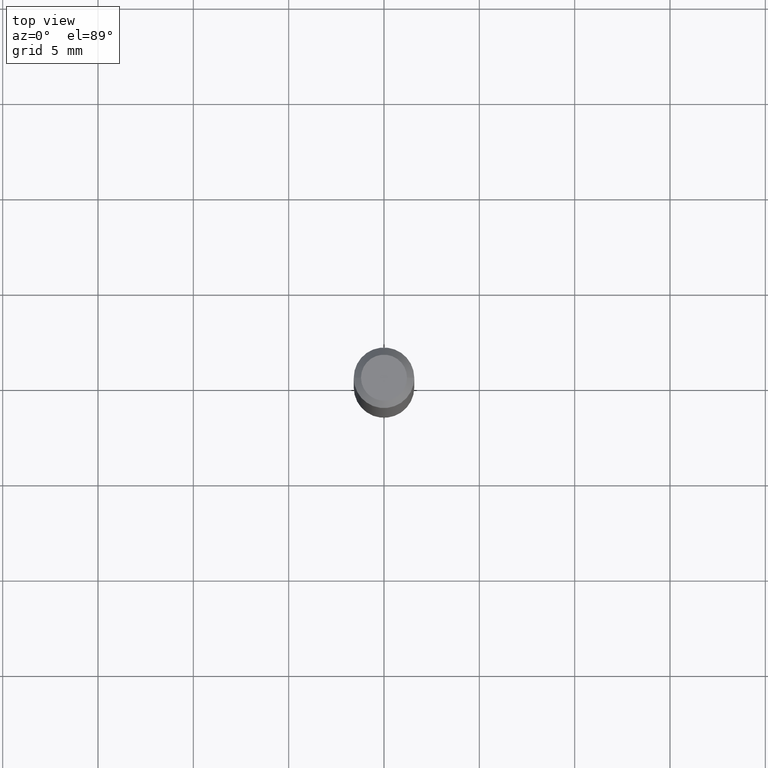
[diagram: clean part render]
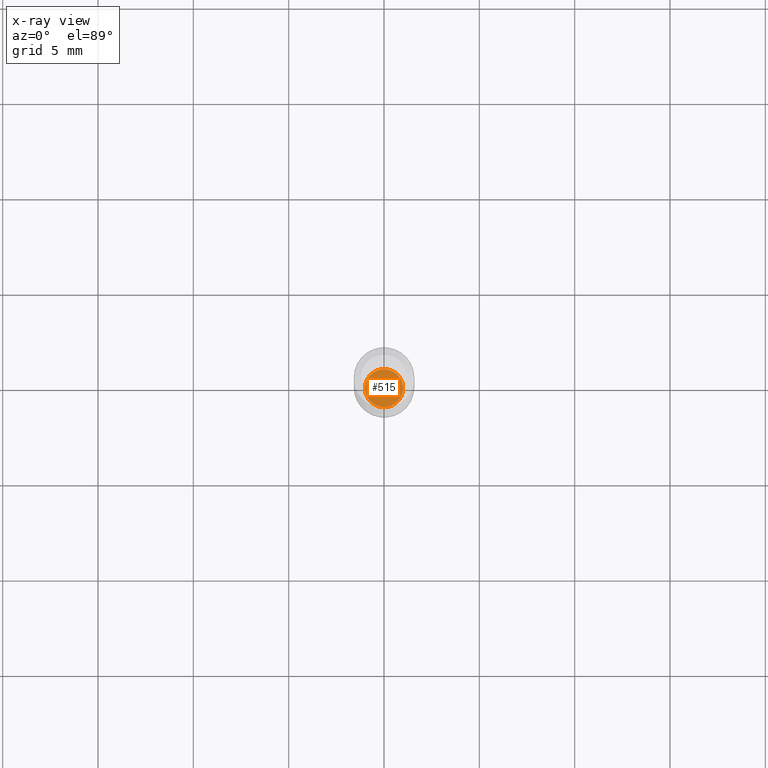
[diagram: x-ray — body ghosted, one internal face saturated and labeled with its STEP entity id]
A machine part, top view, then the same camera in x-ray: the body is ghosted and one INTERNAL B-rep face — a face not visible from any outside direction — is saturated and labeled: STEP entity #515.
In plain terms, the highlighted planar face has unit normal (-0, 0, 1).
Its self-contained STEP definition (entity closure, byte-faithful):
#14 = CARTESIAN_POINT ( 'NONE',  ( 3.081290695793272291E-29, -4.399266486942364120E-15, -1.260000000000000231 ) ) ;
#55 = DIRECTION ( 'NONE',  ( -2.438088387897960049E-29, 3.491481338843145188E-15, 1.000000000000000000 ) ) ;
#61 = CARTESIAN_POINT ( 'NONE',  ( 0.03949999999999994488, -4.675093512710971151E-15, -1.260000000000000231 ) ) ;
#112 = AXIS2_PLACEMENT_3D ( 'NONE', #145, #55, #369 ) ;
#137 = DIRECTION ( 'NONE',  ( 1.000000000000000000, -6.982962677686256455E-15, 0.000000000000000000 ) ) ;
#145 = CARTESIAN_POINT ( 'NONE',  ( 3.081290695793272291E-29, -4.399266486942364120E-15, -1.260000000000000231 ) ) ;
#154 = EDGE_LOOP ( 'NONE', ( #224, #359 ) ) ;
#175 = DIRECTION ( 'NONE',  ( -2.445468806185136597E-29, 3.491481338843145583E-15, 1.000000000000000000 ) ) ;
#185 = CARTESIAN_POINT ( 'NONE',  ( -0.03949999999999994488, -4.115952879143013491E-15, -1.260000000000000231 ) ) ;
#196 = AXIS2_PLACEMENT_3D ( 'NONE', #14, #175, #137 ) ;
#209 = VERTEX_POINT ( 'NONE', #185 ) ;
#224 = ORIENTED_EDGE ( 'NONE', *, *, #391, .F. ) ;
#240 = CIRCLE ( 'NONE', #379, 0.03949999999999994488 ) ;
#254 = VERTEX_POINT ( 'NONE', #61 ) ;
#269 = EDGE_CURVE ( 'NONE', #209, #254, #296, .T. ) ;
#275 = DIRECTION ( 'NONE',  ( -2.445468806185136597E-29, 3.491481338843145583E-15, 1.000000000000000000 ) ) ;
#296 = CIRCLE ( 'NONE', #196, 0.03949999999999994488 ) ;
#359 = ORIENTED_EDGE ( 'NONE', *, *, #269, .F. ) ;
#369 = DIRECTION ( 'NONE',  ( 1.000000000000000000, -6.982962677686265922E-15, 4.876176775795935793E-29 ) ) ;
#372 = FACE_OUTER_BOUND ( 'NONE', #154, .T. ) ;
#377 = PLANE ( 'NONE',  #112 ) ;
#379 = AXIS2_PLACEMENT_3D ( 'NONE', #472, #275, #460 ) ;
#391 = EDGE_CURVE ( 'NONE', #254, #209, #240, .T. ) ;
#460 = DIRECTION ( 'NONE',  ( 1.000000000000000000, -6.982962677686256455E-15, 0.000000000000000000 ) ) ;
#472 = CARTESIAN_POINT ( 'NONE',  ( 3.081290695793272291E-29, -4.399266486942364120E-15, -1.260000000000000231 ) ) ;
#515 = ADVANCED_FACE ( 'NONE', ( #372 ), #377, .F. ) ;